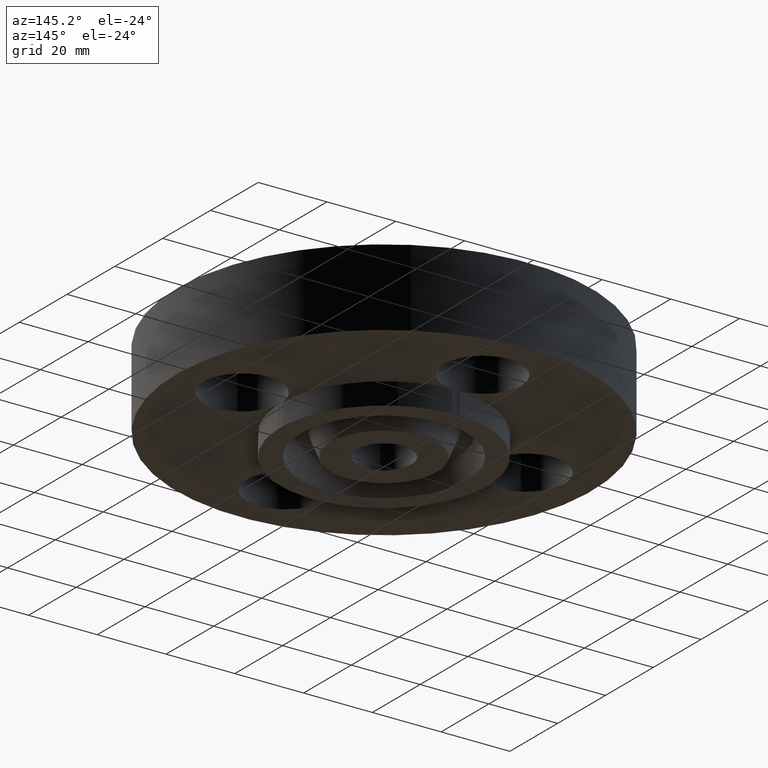
[diagram: clean part render]
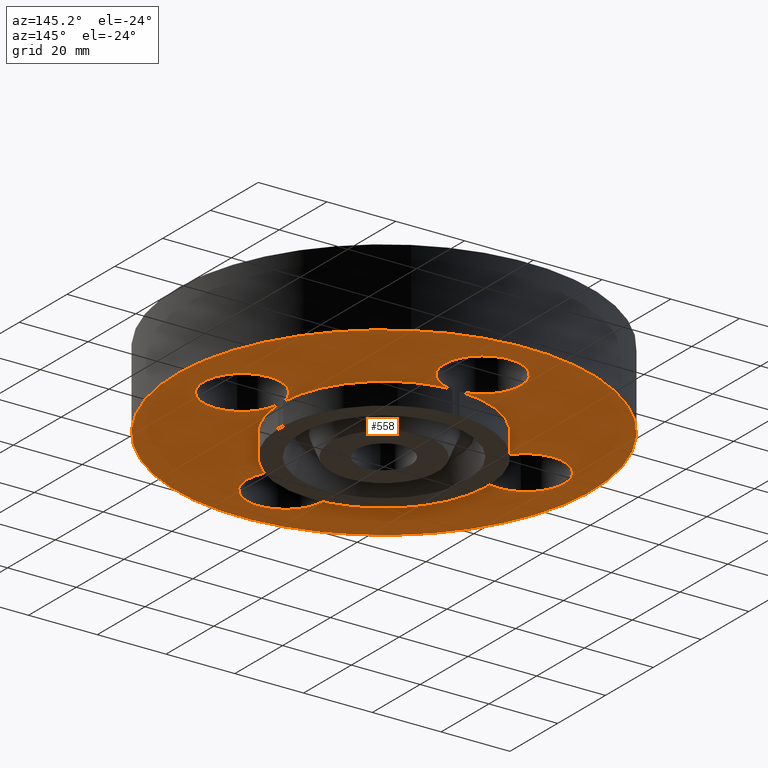
[diagram: same view with one face highlighted and labeled with its STEP entity id]
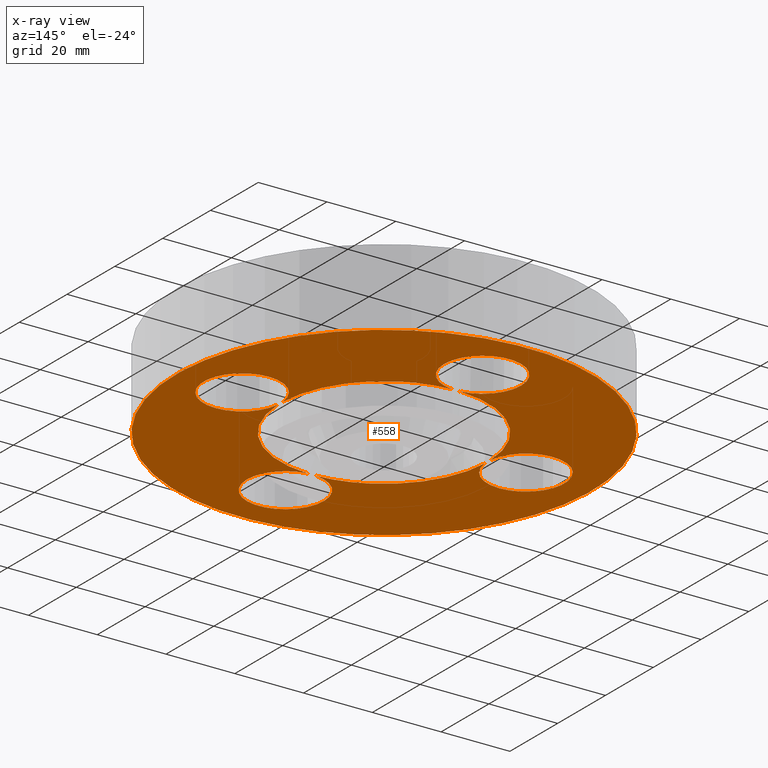
[diagram: x-ray of the same camera — body ghosted, the highlighted face saturated]
A machine part, auxiliary view. The second image highlights one B-rep face of the part: STEP entity #558.
The next image is the same camera in x-ray: the body ghosted, the highlighted face saturated — about 0% of this face is hidden behind the body in this view.
In plain terms, the highlighted planar face has unit normal (0, 0, -1).
Its self-contained STEP definition (entity closure, byte-faithful):
#306=AXIS2_PLACEMENT_3D('Circle Axis2P3D',#304,#305,$) ;
#325=AXIS2_PLACEMENT_3D('Circle Axis2P3D',#323,#324,$) ;
#351=AXIS2_PLACEMENT_3D('Circle Axis2P3D',#349,#350,$) ;
#370=AXIS2_PLACEMENT_3D('Circle Axis2P3D',#368,#369,$) ;
#396=AXIS2_PLACEMENT_3D('Circle Axis2P3D',#394,#395,$) ;
#422=AXIS2_PLACEMENT_3D('Circle Axis2P3D',#420,#421,$) ;
#442=AXIS2_PLACEMENT_3D('Plane Axis2P3D',#439,#440,#441) ;
#446=AXIS2_PLACEMENT_3D('Circle Axis2P3D',#444,#445,$) ;
#455=AXIS2_PLACEMENT_3D('Circle Axis2P3D',#453,#454,$) ;
#464=AXIS2_PLACEMENT_3D('Circle Axis2P3D',#462,#463,$) ;
#471=AXIS2_PLACEMENT_3D('Circle Axis2P3D',#469,#470,$) ;
#478=AXIS2_PLACEMENT_3D('Circle Axis2P3D',#476,#477,$) ;
#483=AXIS2_PLACEMENT_3D('Circle Axis2P3D',#481,#482,$) ;
#490=AXIS2_PLACEMENT_3D('Circle Axis2P3D',#488,#489,$) ;
#497=AXIS2_PLACEMENT_3D('Circle Axis2P3D',#495,#496,$) ;
#502=AXIS2_PLACEMENT_3D('Circle Axis2P3D',#500,#501,$) ;
#509=AXIS2_PLACEMENT_3D('Circle Axis2P3D',#507,#508,$) ;
#516=AXIS2_PLACEMENT_3D('Circle Axis2P3D',#514,#515,$) ;
#521=AXIS2_PLACEMENT_3D('Circle Axis2P3D',#519,#520,$) ;
#528=AXIS2_PLACEMENT_3D('Circle Axis2P3D',#526,#527,$) ;
#535=AXIS2_PLACEMENT_3D('Circle Axis2P3D',#533,#534,$) ;
#301=CARTESIAN_POINT('Vertex',(1.186825,-0.0400333532821,1.39870617276E-016)) ;
#304=CARTESIAN_POINT('Axis2P3D Location',(0.,0.,1.39870617276E-016)) ;
#308=CARTESIAN_POINT('Vertex',(0.0400333532821,-1.186825,1.39870617276E-016)) ;
#323=CARTESIAN_POINT('Axis2P3D Location',(0.,0.,1.39870617276E-016)) ;
#327=CARTESIAN_POINT('Vertex',(-0.0400333532821,-1.186825,1.39870617276E-016)) ;
#329=CARTESIAN_POINT('Vertex',(-0.569317827095,-1.04212929225,1.39870617276E-016)) ;
#349=CARTESIAN_POINT('Axis2P3D Location',(0.,0.,1.39870617276E-016)) ;
#353=CARTESIAN_POINT('Vertex',(-1.186825,-0.0400333532821,1.39870617276E-016)) ;
#368=CARTESIAN_POINT('Axis2P3D Location',(0.,0.,1.39870617276E-016)) ;
#372=CARTESIAN_POINT('Vertex',(-1.186825,0.0400333532821,1.39870617276E-016)) ;
#374=CARTESIAN_POINT('Vertex',(-0.0400333532821,1.186825,1.39870617276E-016)) ;
#394=CARTESIAN_POINT('Axis2P3D Location',(0.,0.,1.39870617276E-016)) ;
#398=CARTESIAN_POINT('Vertex',(0.0400333532821,1.186825,1.39870617276E-016)) ;
#400=CARTESIAN_POINT('Vertex',(0.569317827095,1.04212929225,1.39870617276E-016)) ;
#420=CARTESIAN_POINT('Axis2P3D Location',(0.,0.,1.39870617276E-016)) ;
#424=CARTESIAN_POINT('Vertex',(1.186825,0.0400333532821,1.39870617276E-016)) ;
#439=CARTESIAN_POINT('Axis2P3D Location',(0.,1.1875,0.)) ;
#444=CARTESIAN_POINT('Axis2P3D Location',(0.,0.,0.)) ;
#448=CARTESIAN_POINT('Vertex',(-1.13863565419,-2.0842585845,1.39870617276E-016)) ;
#450=CARTESIAN_POINT('Vertex',(1.13863565419,2.0842585845,1.39870617276E-016)) ;
#453=CARTESIAN_POINT('Axis2P3D Location',(0.,0.,0.)) ;
#462=CARTESIAN_POINT('Axis2P3D Location',(1.62500000001,0.,0.)) ;
#466=CARTESIAN_POINT('Vertex',(1.41405276302,-0.386136327233,0.)) ;
#469=CARTESIAN_POINT('Axis2P3D Location',(1.62500000001,-2.79741234551E-016,0.)) ;
#473=CARTESIAN_POINT('Vertex',(1.83594723699,0.386136327233,0.)) ;
#476=CARTESIAN_POINT('Axis2P3D Location',(1.62500000001,0.,0.)) ;
#481=CARTESIAN_POINT('Axis2P3D Location',(1.74838271595E-017,1.62500000001,0.)) ;
#485=CARTESIAN_POINT('Vertex',(0.386136327233,1.41405276302,0.)) ;
#488=CARTESIAN_POINT('Axis2P3D Location',(5.24514814784E-017,1.62500000001,0.)) ;
#492=CARTESIAN_POINT('Vertex',(-0.386136327233,1.83594723699,0.)) ;
#495=CARTESIAN_POINT('Axis2P3D Location',(1.74838271595E-017,1.62500000001,0.)) ;
#500=CARTESIAN_POINT('Axis2P3D Location',(-1.62500000001,-1.39870617276E-016,0.)) ;
#504=CARTESIAN_POINT('Vertex',(-1.41405276302,0.386136327233,0.)) ;
#507=CARTESIAN_POINT('Axis2P3D Location',(-1.62500000001,-1.39870617276E-016,0.)) ;
#511=CARTESIAN_POINT('Vertex',(-1.83594723699,-0.386136327233,0.)) ;
#514=CARTESIAN_POINT('Axis2P3D Location',(-1.62500000001,-1.39870617276E-016,0.)) ;
#519=CARTESIAN_POINT('Axis2P3D Location',(2.97225061711E-016,-1.62500000001,0.)) ;
#523=CARTESIAN_POINT('Vertex',(-0.386136327233,-1.41405276302,0.)) ;
#526=CARTESIAN_POINT('Axis2P3D Location',(2.27289753073E-016,-1.62500000001,0.)) ;
#530=CARTESIAN_POINT('Vertex',(0.386136327233,-1.83594723699,0.)) ;
#533=CARTESIAN_POINT('Axis2P3D Location',(2.97225061711E-016,-1.62500000001,0.)) ;
#305=DIRECTION('Axis2P3D Direction',(0.,0.,-0.0393700787402)) ;
#324=DIRECTION('Axis2P3D Direction',(0.,0.,-0.0393700787402)) ;
#350=DIRECTION('Axis2P3D Direction',(0.,0.,-0.0393700787402)) ;
#369=DIRECTION('Axis2P3D Direction',(0.,0.,-0.0393700787402)) ;
#395=DIRECTION('Axis2P3D Direction',(0.,0.,-0.0393700787402)) ;
#421=DIRECTION('Axis2P3D Direction',(0.,0.,-0.0393700787402)) ;
#440=DIRECTION('Axis2P3D Direction',(0.,0.,-0.0393700787402)) ;
#441=DIRECTION('Axis2P3D XDirection',(0.0393700787402,0.,0.)) ;
#445=DIRECTION('Axis2P3D Direction',(0.,0.,-0.0393700787402)) ;
#454=DIRECTION('Axis2P3D Direction',(0.,0.,-0.0393700787402)) ;
#463=DIRECTION('Axis2P3D Direction',(0.,0.,-0.0393700787402)) ;
#470=DIRECTION('Axis2P3D Direction',(0.,0.,-0.0393700787402)) ;
#477=DIRECTION('Axis2P3D Direction',(0.,0.,-0.0393700787402)) ;
#482=DIRECTION('Axis2P3D Direction',(0.,0.,-0.0393700787402)) ;
#489=DIRECTION('Axis2P3D Direction',(0.,0.,-0.0393700787402)) ;
#496=DIRECTION('Axis2P3D Direction',(0.,0.,-0.0393700787402)) ;
#501=DIRECTION('Axis2P3D Direction',(0.,0.,-0.0393700787402)) ;
#508=DIRECTION('Axis2P3D Direction',(0.,0.,-0.0393700787402)) ;
#515=DIRECTION('Axis2P3D Direction',(0.,0.,-0.0393700787402)) ;
#520=DIRECTION('Axis2P3D Direction',(0.,0.,-0.0393700787402)) ;
#527=DIRECTION('Axis2P3D Direction',(0.,0.,-0.0393700787402)) ;
#534=DIRECTION('Axis2P3D Direction',(0.,0.,-0.0393700787402)) ;
#459=ORIENTED_EDGE('',*,*,#452,.T.) ;
#460=ORIENTED_EDGE('',*,*,#457,.T.) ;
#539=ORIENTED_EDGE('',*,*,#310,.F.) ;
#540=ORIENTED_EDGE('',*,*,#468,.F.) ;
#541=ORIENTED_EDGE('',*,*,#475,.F.) ;
#542=ORIENTED_EDGE('',*,*,#480,.F.) ;
#543=ORIENTED_EDGE('',*,*,#426,.F.) ;
#544=ORIENTED_EDGE('',*,*,#402,.F.) ;
#545=ORIENTED_EDGE('',*,*,#487,.F.) ;
#546=ORIENTED_EDGE('',*,*,#494,.F.) ;
#547=ORIENTED_EDGE('',*,*,#499,.F.) ;
#548=ORIENTED_EDGE('',*,*,#376,.F.) ;
#549=ORIENTED_EDGE('',*,*,#506,.F.) ;
#550=ORIENTED_EDGE('',*,*,#513,.F.) ;
#551=ORIENTED_EDGE('',*,*,#518,.F.) ;
#552=ORIENTED_EDGE('',*,*,#355,.F.) ;
#553=ORIENTED_EDGE('',*,*,#331,.F.) ;
#554=ORIENTED_EDGE('',*,*,#525,.F.) ;
#555=ORIENTED_EDGE('',*,*,#532,.F.) ;
#556=ORIENTED_EDGE('',*,*,#537,.F.) ;
#557=FACE_BOUND('',#538,.T.) ;
#558=ADVANCED_FACE('PartBody',(#461,#557),#443,.T.) ;
#307=CIRCLE('generated circle',#306,1.1875) ;
#326=CIRCLE('generated circle',#325,1.1875) ;
#352=CIRCLE('generated circle',#351,1.1875) ;
#371=CIRCLE('generated circle',#370,1.1875) ;
#397=CIRCLE('generated circle',#396,1.1875) ;
#423=CIRCLE('generated circle',#422,1.1875) ;
#447=CIRCLE('generated circle',#446,2.37500000001) ;
#456=CIRCLE('generated circle',#455,2.37500000001) ;
#465=CIRCLE('generated circle',#464,0.440000000002) ;
#472=CIRCLE('generated circle',#471,0.440000000002) ;
#479=CIRCLE('generated circle',#478,0.440000000002) ;
#484=CIRCLE('generated circle',#483,0.440000000002) ;
#491=CIRCLE('generated circle',#490,0.440000000002) ;
#498=CIRCLE('generated circle',#497,0.440000000002) ;
#503=CIRCLE('generated circle',#502,0.440000000002) ;
#510=CIRCLE('generated circle',#509,0.440000000002) ;
#517=CIRCLE('generated circle',#516,0.440000000002) ;
#522=CIRCLE('generated circle',#521,0.440000000002) ;
#529=CIRCLE('generated circle',#528,0.440000000002) ;
#536=CIRCLE('generated circle',#535,0.440000000002) ;
#310=EDGE_CURVE('',#302,#309,#307,.T.) ;
#331=EDGE_CURVE('',#328,#330,#326,.T.) ;
#355=EDGE_CURVE('',#330,#354,#352,.T.) ;
#376=EDGE_CURVE('',#373,#375,#371,.T.) ;
#402=EDGE_CURVE('',#399,#401,#397,.T.) ;
#426=EDGE_CURVE('',#401,#425,#423,.T.) ;
#452=EDGE_CURVE('',#449,#451,#447,.T.) ;
#457=EDGE_CURVE('',#451,#449,#456,.T.) ;
#468=EDGE_CURVE('',#467,#302,#465,.T.) ;
#475=EDGE_CURVE('',#474,#467,#472,.T.) ;
#480=EDGE_CURVE('',#425,#474,#479,.T.) ;
#487=EDGE_CURVE('',#486,#399,#484,.T.) ;
#494=EDGE_CURVE('',#493,#486,#491,.T.) ;
#499=EDGE_CURVE('',#375,#493,#498,.T.) ;
#506=EDGE_CURVE('',#505,#373,#503,.T.) ;
#513=EDGE_CURVE('',#512,#505,#510,.T.) ;
#518=EDGE_CURVE('',#354,#512,#517,.T.) ;
#525=EDGE_CURVE('',#524,#328,#522,.T.) ;
#532=EDGE_CURVE('',#531,#524,#529,.T.) ;
#537=EDGE_CURVE('',#309,#531,#536,.T.) ;
#458=EDGE_LOOP('',(#459,#460)) ;
#538=EDGE_LOOP('',(#539,#540,#541,#542,#543,#544,#545,#546,#547,#548,#549,#550,#551,#552,#553,#554,#555,#556)) ;
#461=FACE_OUTER_BOUND('',#458,.T.) ;
#443=PLANE('',#442) ;
#302=VERTEX_POINT('',#301) ;
#309=VERTEX_POINT('',#308) ;
#328=VERTEX_POINT('',#327) ;
#330=VERTEX_POINT('',#329) ;
#354=VERTEX_POINT('',#353) ;
#373=VERTEX_POINT('',#372) ;
#375=VERTEX_POINT('',#374) ;
#399=VERTEX_POINT('',#398) ;
#401=VERTEX_POINT('',#400) ;
#425=VERTEX_POINT('',#424) ;
#449=VERTEX_POINT('',#448) ;
#451=VERTEX_POINT('',#450) ;
#467=VERTEX_POINT('',#466) ;
#474=VERTEX_POINT('',#473) ;
#486=VERTEX_POINT('',#485) ;
#493=VERTEX_POINT('',#492) ;
#505=VERTEX_POINT('',#504) ;
#512=VERTEX_POINT('',#511) ;
#524=VERTEX_POINT('',#523) ;
#531=VERTEX_POINT('',#530) ;